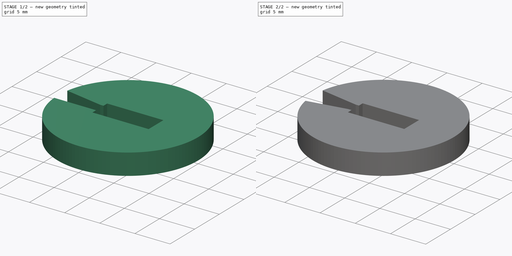
[diagram: build sequence overview — one tinted view per stage of 2, left to right]
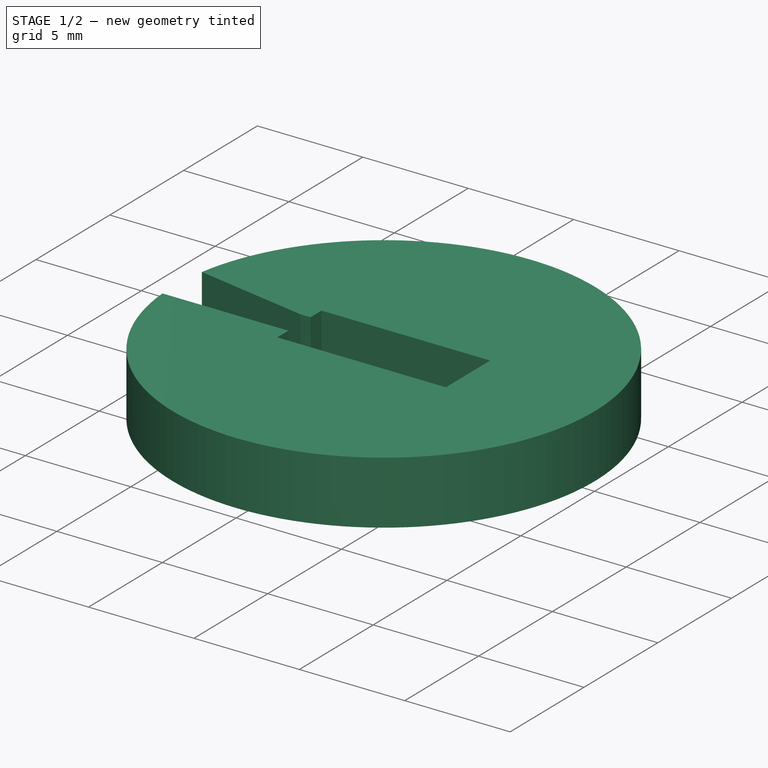
[diagram: stage 1 of 2 — iso view after this stage's code; geometry added in this stage tinted green]
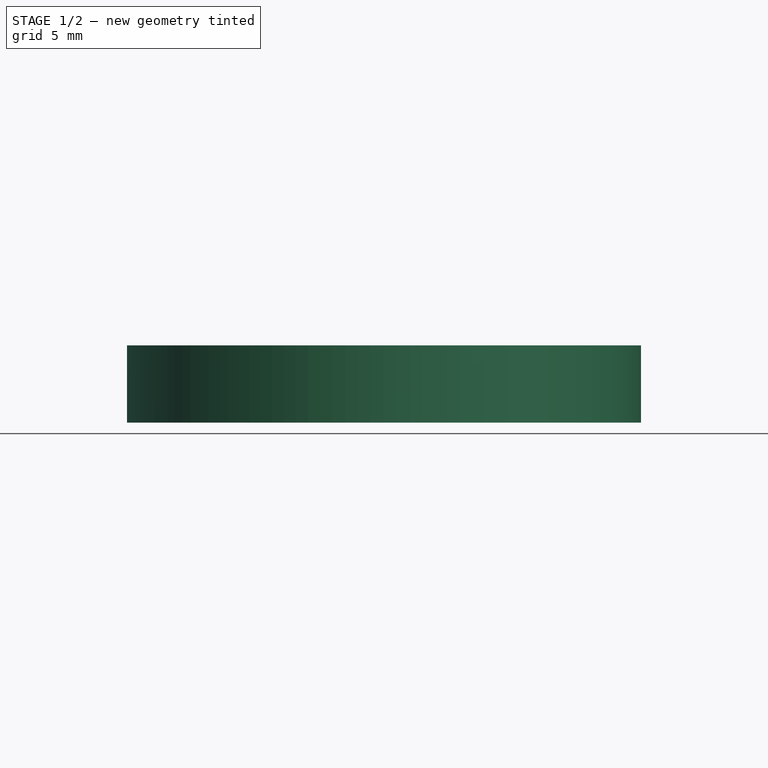
[diagram: stage 1 of 2 — front view after this stage's code; geometry added in this stage tinted green]
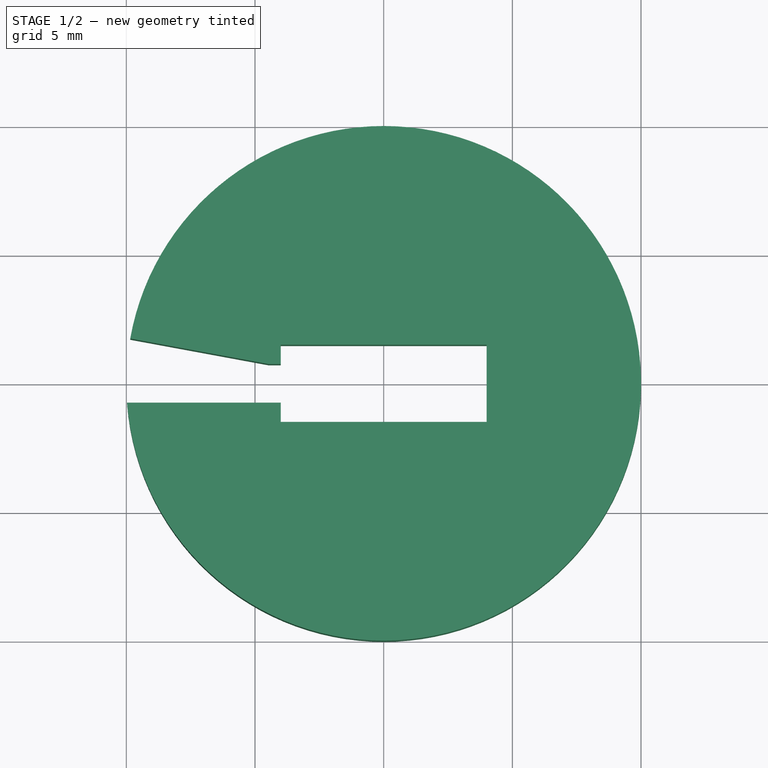
[diagram: stage 1 of 2 — top view after this stage's code; geometry added in this stage tinted green]
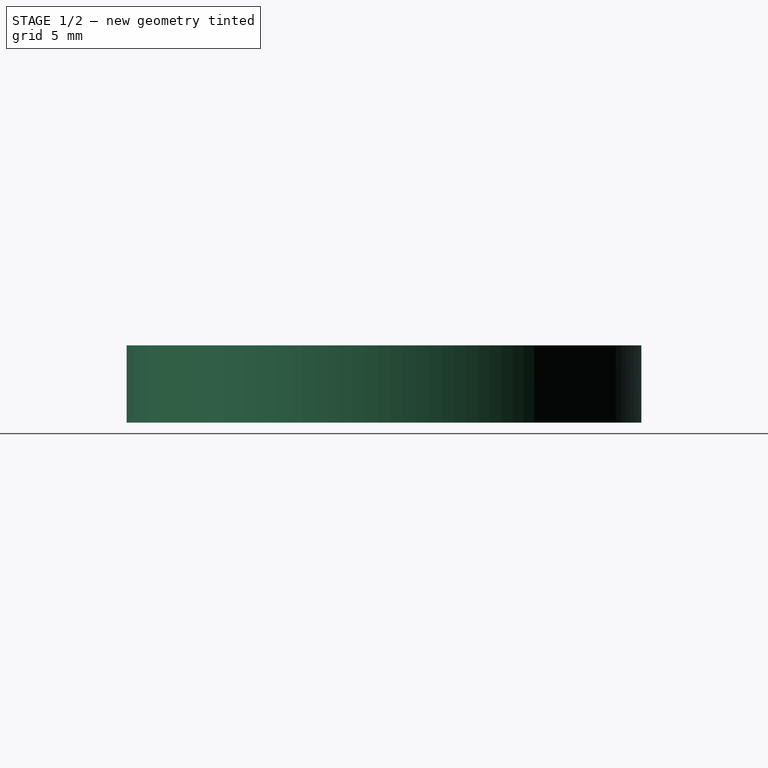
[diagram: stage 1 of 2 — right view after this stage's code; geometry added in this stage tinted green]
FCSTD DOCUMENT  (FreeCAD 1.0R39109 (Git))
Label: FridgeDoorSpacer
License: All rights reserved
LicenseURL: https://en.wikipedia.org/wiki/All_rights_reserved
objects: PartDesign::Chamfer×2, Sketcher::SketchObject×1, PartDesign::Pad×1, PartDesign::Body×1
note: 12 computed .brp shape members not serialized (recipe doc carries the construction recipe); baked Part::Feature solids carry a one-line shape summary decoded from their .brp

FEATURE [Sketcher::SketchObject] Sketch
  ArcFitTolerance = 0
  AttachmentSupport = -> [XY_Plane]
  FullyConstrained = true
  MakeInternals = false
  MapMode = 5
  sketch-geometry (10):
    g0: LineSegment StartX=-9.97184 StartY=0.75 StartZ=0 EndX=-4 EndY=0.75 EndZ=0
    g1: LineSegment StartX=-4 StartY=0.75 StartZ=0 EndX=-4 EndY=1.5 EndZ=0
    g2: LineSegment StartX=-4 StartY=1.5 StartZ=0 EndX=4 EndY=1.5 EndZ=0
    g3: LineSegment StartX=4 StartY=1.5 StartZ=0 EndX=4 EndY=-1.5 EndZ=0
    g4: LineSegment StartX=4 StartY=-1.5 StartZ=0 EndX=-4 EndY=-1.5 EndZ=0
    g5: LineSegment StartX=-4 StartY=-1.5 StartZ=0 EndX=-4 EndY=-0.75 EndZ=0
    g6: LineSegment StartX=-4 StartY=-0.75 StartZ=0 EndX=-9.97184 EndY=-0.75 EndZ=0
    g7: ArcOfCircle CenterX=0 CenterY=0 CenterZ=0 NormalX=0 NormalY=0 NormalZ=1 AngleXU=0 Radius=10 StartAngle=3.21666 EndAngle=9.34971
    g8: LineSegment [constr] StartX=-4 StartY=1.5 StartZ=0 EndX=4 EndY=-1.5 EndZ=0
    g9: LineSegment [constr] StartX=4 StartY=1.5 StartZ=0 EndX=-4 EndY=-1.5 EndZ=0
  constraints (28):
    c: Horizontal(g0)
    c: Coincident(g0,g1)
    c: Coincident(g1,g2)
    c: Horizontal(g2)
    c: Coincident(g2,g3)
    c: Vertical(g3)
    c: Coincident(g3,g4)
    c: Horizontal(g4)
    c: Coincident(g4,g5)
    c: Vertical(g5)
    c: Coincident(g5,g6)
    c: Horizontal(g6)
    c: Coincident(g7,g0)
    c: Coincident(g7,g6)
    c: Vertical(g1)
    c: Distance(g0,g5) = 1.5
    c: DistanceX(g0,g5) = 0
    c: DistanceY(g1,g1) = 0.75
    c: DistanceY(g5,g5) = 0.75
    c: DistanceX(g2,g2) = 8
    c: Coincident(g4,g9)
    c: Coincident(g1,g8)
    c: Coincident(g2,g9)
    c: Coincident(g8,g3)
    c: PointOnObject(g7,g8)
    c: PointOnObject(g-1,g9)
    c: Coincident(g7,g-1)
    c: Diameter(g7) = 20
FEATURE [PartDesign::Pad] Pad
  Direction = (0,0,1)
  Length = 3
  Length2 = 10
  Profile = -> Sketch
  ReferenceAxis = -> Sketch [N_Axis]
  Suppressed = false
  Type = 0
FEATURE [PartDesign::Chamfer] Chamfer
  Angle = 45
  Base = -> Pad [Edge1]
  BaseFeature = -> Pad
  ChamferType = 1
  FlipDirection = false
  Size = 5.5
  Size2 = 1
  SupportTransform = false
  Suppressed = false
  UseAllEdges = false
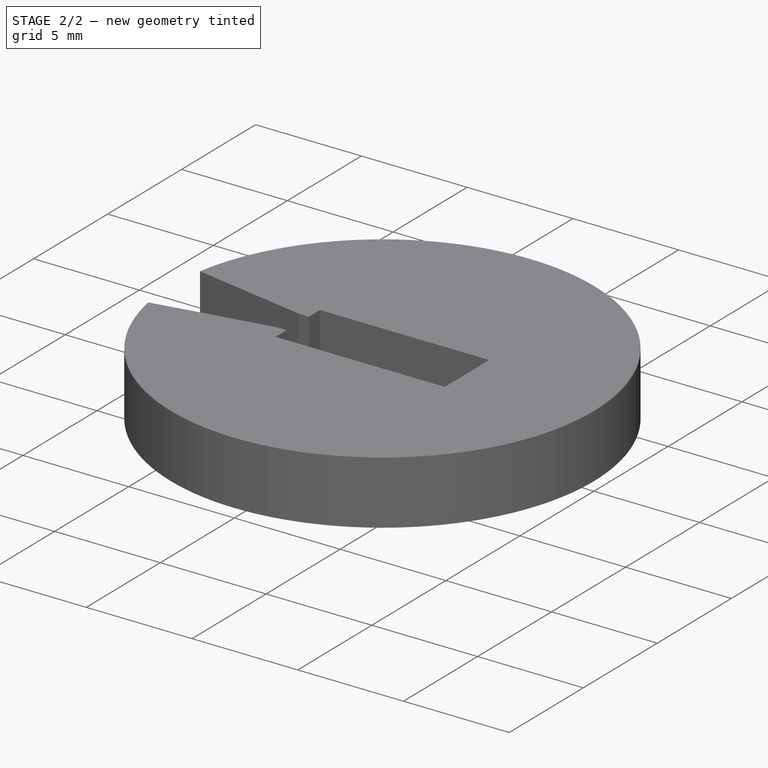
[diagram: stage 2 of 2 — iso view after this stage's code; geometry added in this stage tinted green]
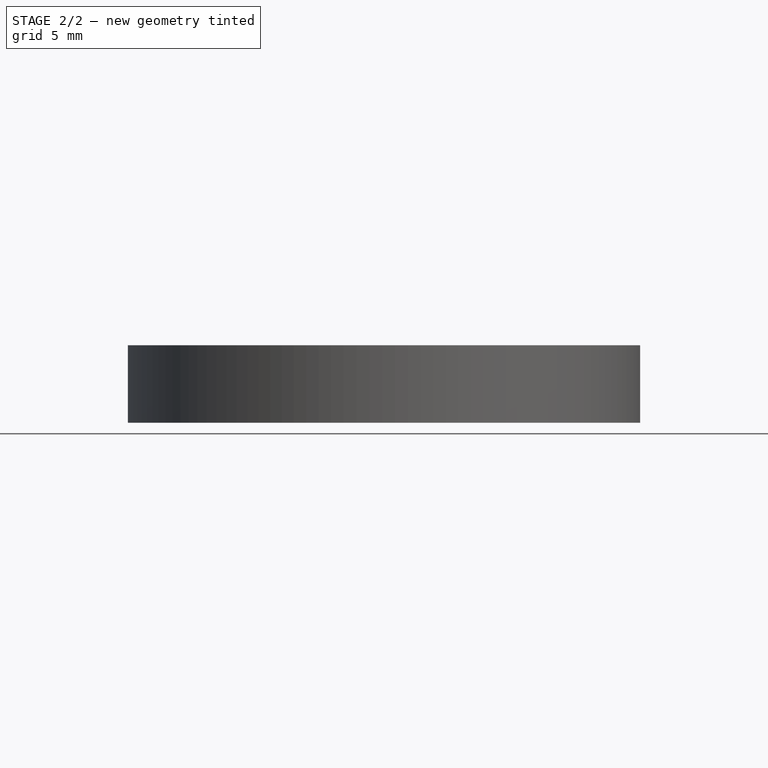
[diagram: stage 2 of 2 — front view after this stage's code; geometry added in this stage tinted green]
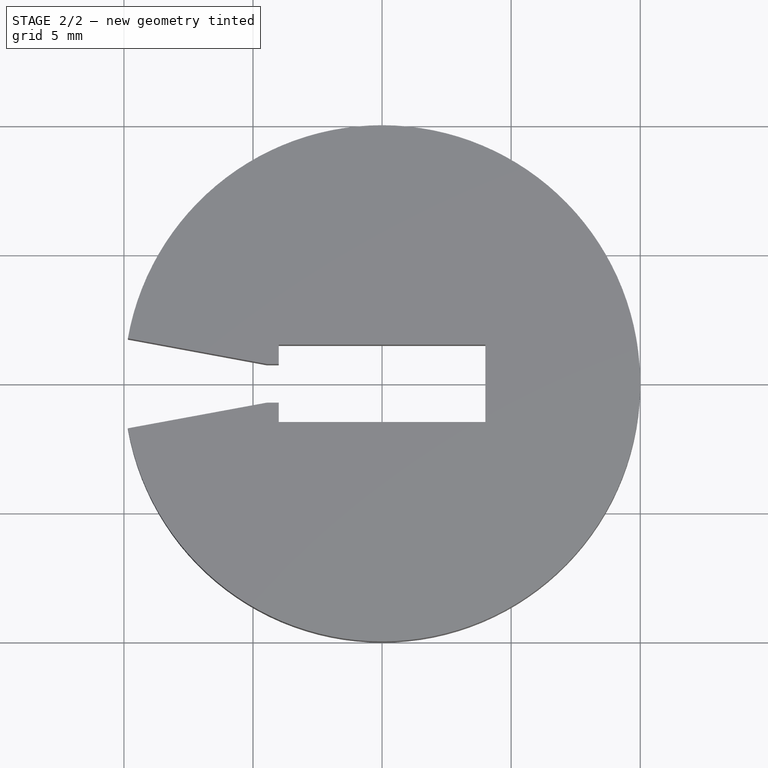
[diagram: stage 2 of 2 — top view after this stage's code; geometry added in this stage tinted green]
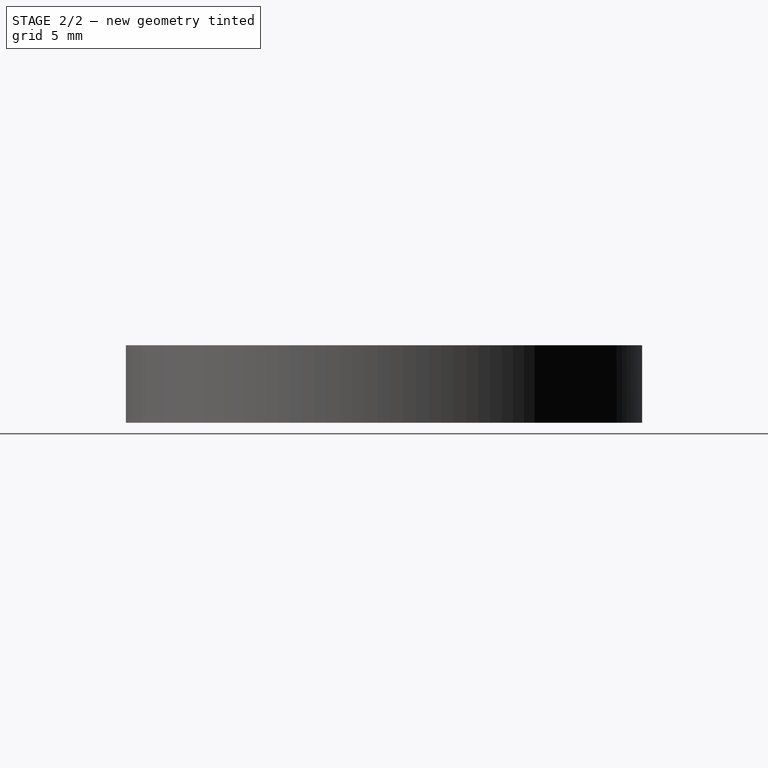
[diagram: stage 2 of 2 — right view after this stage's code; geometry added in this stage tinted green]
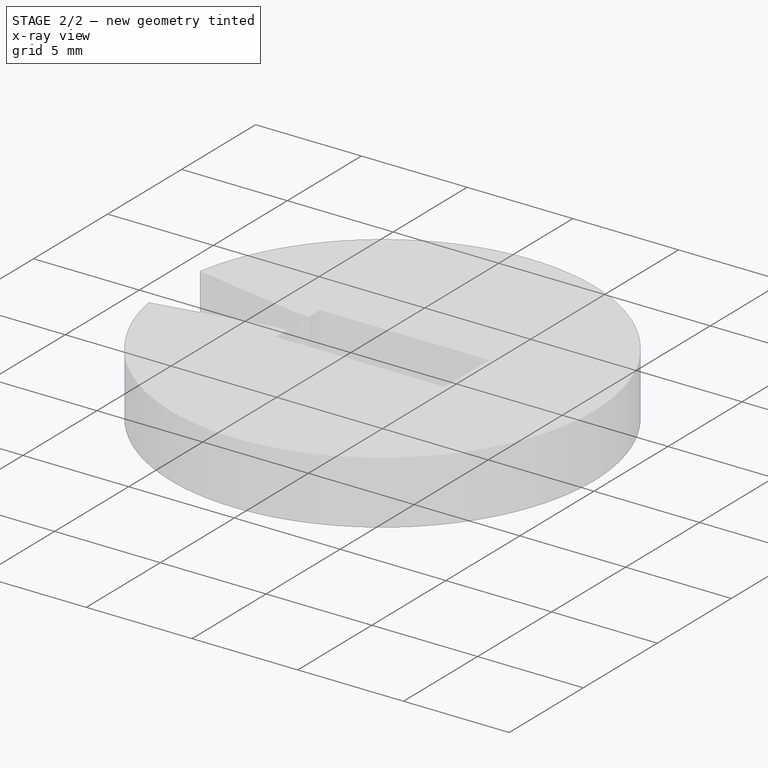
[diagram: stage 2 of 2 — x-ray composite at the iso view; earlier geometry ghosted, this stage's added geometry solid]
FEATURE [PartDesign::Chamfer] Chamfer001
  Angle = 45
  Base = -> Chamfer [Edge23]
  BaseFeature = -> Chamfer
  ChamferType = 1
  FlipDirection = false
  Size = 1
  Size2 = 5.5
  SupportTransform = false
  Suppressed = false
  UseAllEdges = false
FEATURE [PartDesign::Body] Body
  AllowCompound = false
  Group = -> [Sketch,Pad,Chamfer,Chamfer001]
  Origin = -> Origin
  Tip = -> Chamfer001
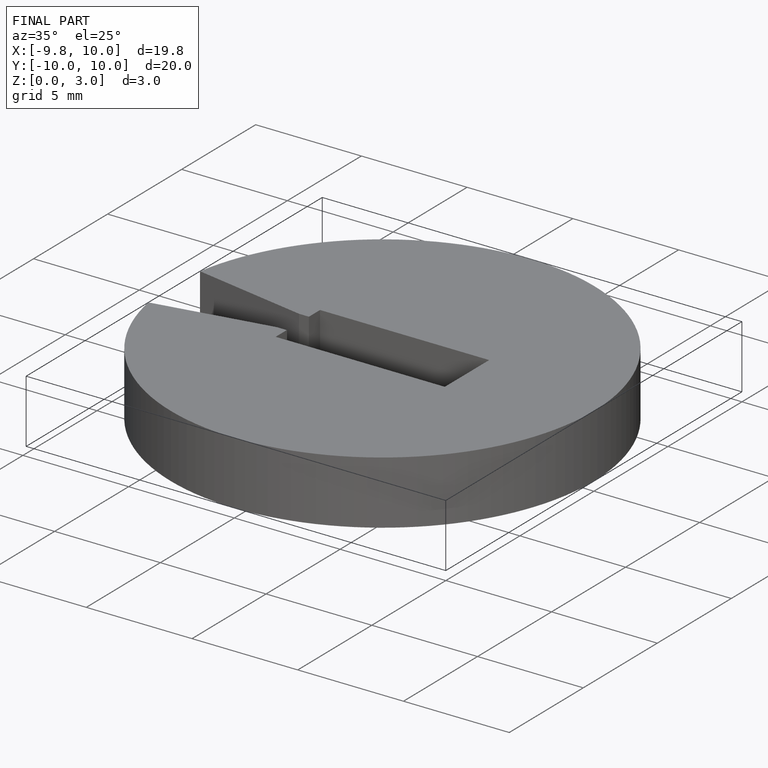
[diagram: finished part — iso view with bounding-box wireframe]
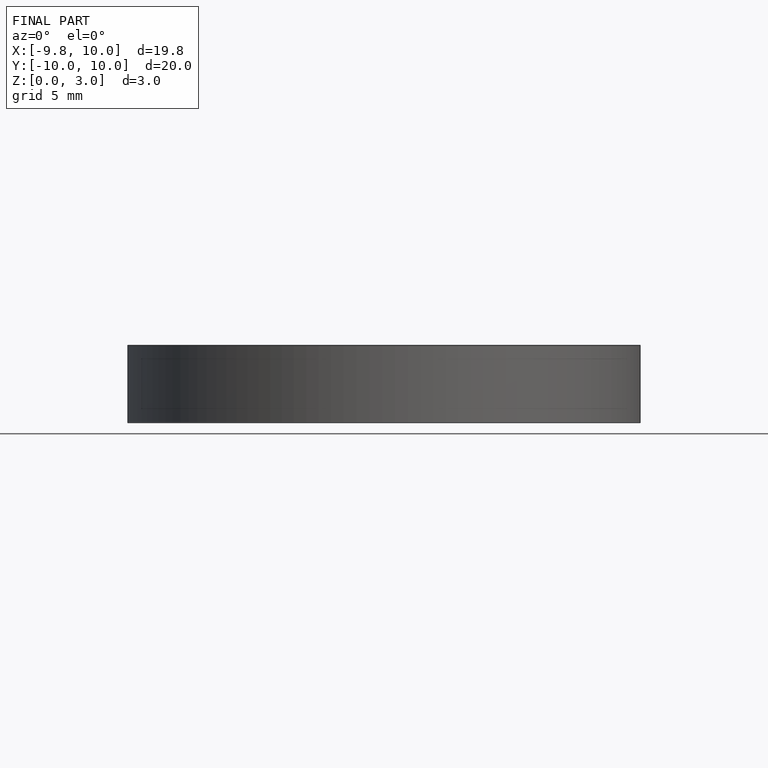
[diagram: finished part — front view with bounding-box wireframe]
